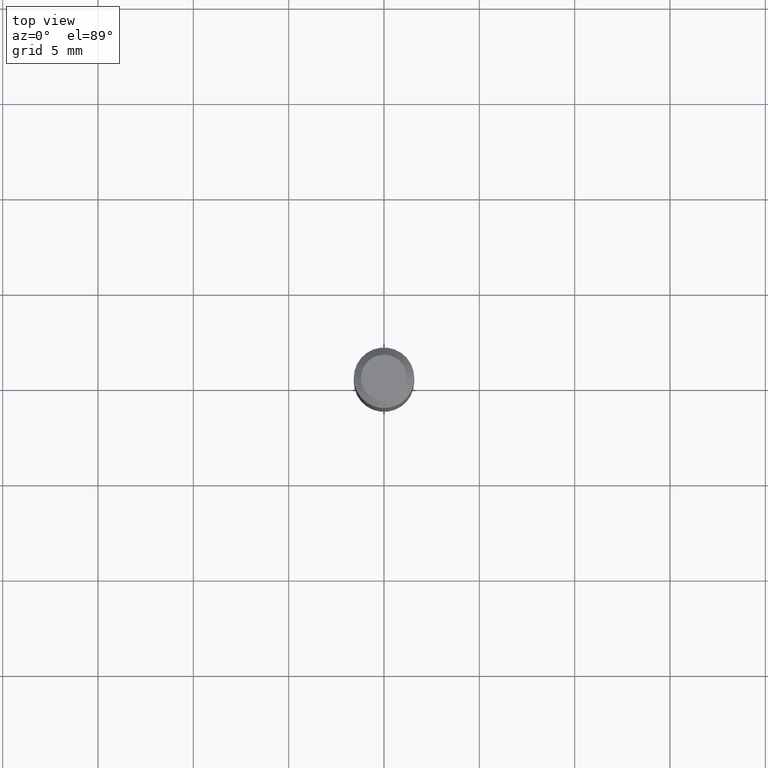
[diagram: clean part render]
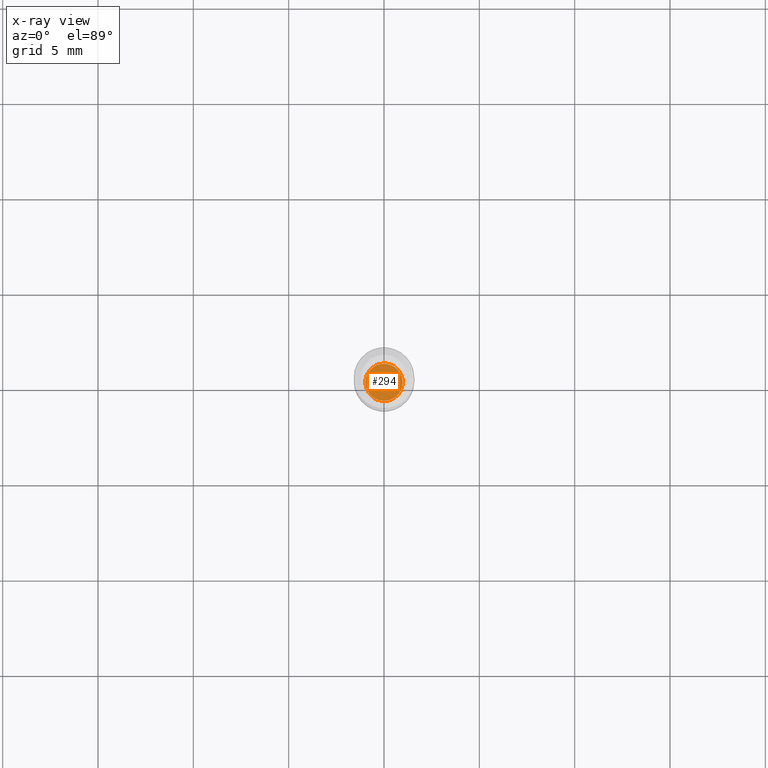
[diagram: x-ray — body ghosted, one internal face saturated and labeled with its STEP entity id]
A machine part, top view, then the same camera in x-ray: the body is ghosted and one INTERNAL B-rep face — a face not visible from any outside direction — is saturated and labeled: STEP entity #294.
In plain terms, the highlighted planar face has unit normal (-0, 0, 1).
Its self-contained STEP definition (entity closure, byte-faithful):
#9 = CARTESIAN_POINT ( 'NONE',  ( 1.379244406688416899E-29, -1.969195475107534123E-15, -0.5639999999999999458 ) ) ;
#25 = ORIENTED_EDGE ( 'NONE', *, *, #454, .F. ) ;
#31 = PLANE ( 'NONE',  #158 ) ;
#64 = EDGE_CURVE ( 'NONE', #133, #278, #98, .T. ) ;
#74 = CARTESIAN_POINT ( 'NONE',  ( 1.379244406688416899E-29, -1.969195475107534123E-15, -0.5639999999999999458 ) ) ;
#98 = CIRCLE ( 'NONE', #351, 0.03849999999999999256 ) ;
#132 = CARTESIAN_POINT ( 'NONE',  ( 1.379244406688417180E-29, -1.969195475107534123E-15, -0.5640000000000000568 ) ) ;
#133 = VERTEX_POINT ( 'NONE', #308 ) ;
#158 = AXIS2_PLACEMENT_3D ( 'NONE', #132, #239, #235 ) ;
#179 = ORIENTED_EDGE ( 'NONE', *, *, #64, .F. ) ;
#202 = DIRECTION ( 'NONE',  ( 1.000000000000000000, -6.982962677686265133E-15, 0.000000000000000000 ) ) ;
#220 = EDGE_LOOP ( 'NONE', ( #179, #25 ) ) ;
#221 = DIRECTION ( 'NONE',  ( 1.000000000000000000, -6.982962677686265133E-15, 0.000000000000000000 ) ) ;
#235 = DIRECTION ( 'NONE',  ( 1.000000000000000000, -6.982962677686265922E-15, 4.876176775795935793E-29 ) ) ;
#239 = DIRECTION ( 'NONE',  ( -2.438088387897960049E-29, 3.491481338843145188E-15, 1.000000000000000000 ) ) ;
#278 = VERTEX_POINT ( 'NONE', #412 ) ;
#294 = ADVANCED_FACE ( 'NONE', ( #309 ), #31, .F. ) ;
#304 = AXIS2_PLACEMENT_3D ( 'NONE', #74, #313, #221 ) ;
#308 = CARTESIAN_POINT ( 'NONE',  ( 0.03849999999999999256, -2.238039538198455139E-15, -0.5639999999999999458 ) ) ;
#309 = FACE_OUTER_BOUND ( 'NONE', #220, .T. ) ;
#312 = DIRECTION ( 'NONE',  ( -2.445468806185136597E-29, 3.491481338843145583E-15, 1.000000000000000000 ) ) ;
#313 = DIRECTION ( 'NONE',  ( -2.445468806185136597E-29, 3.491481338843145583E-15, 1.000000000000000000 ) ) ;
#351 = AXIS2_PLACEMENT_3D ( 'NONE', #9, #312, #202 ) ;
#403 = CIRCLE ( 'NONE', #304, 0.03849999999999999256 ) ;
#412 = CARTESIAN_POINT ( 'NONE',  ( -0.03849999999999999256, -1.692987294665784502E-15, -0.5639999999999999458 ) ) ;
#454 = EDGE_CURVE ( 'NONE', #278, #133, #403, .T. ) ;